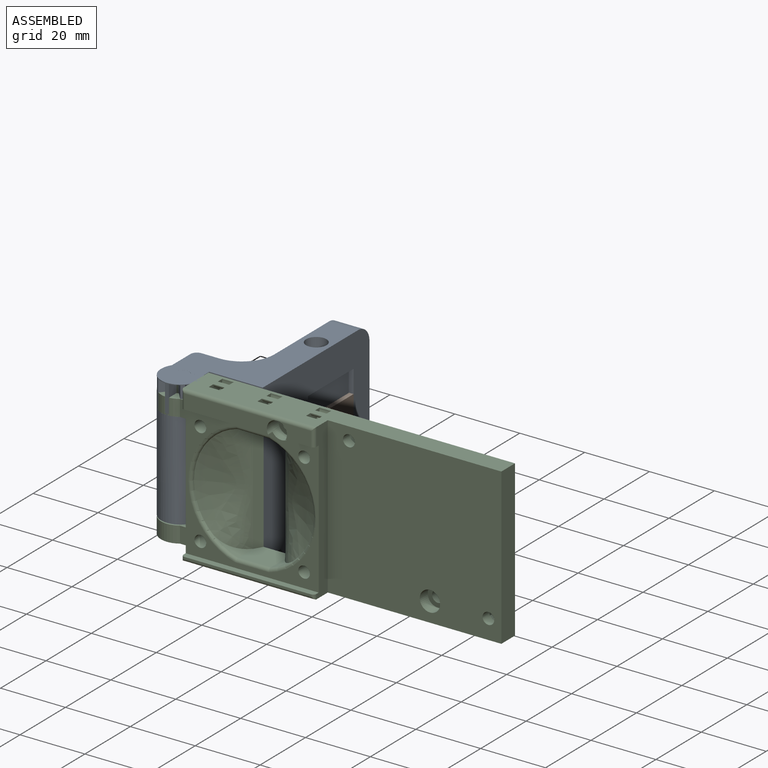
[diagram: assembled view]
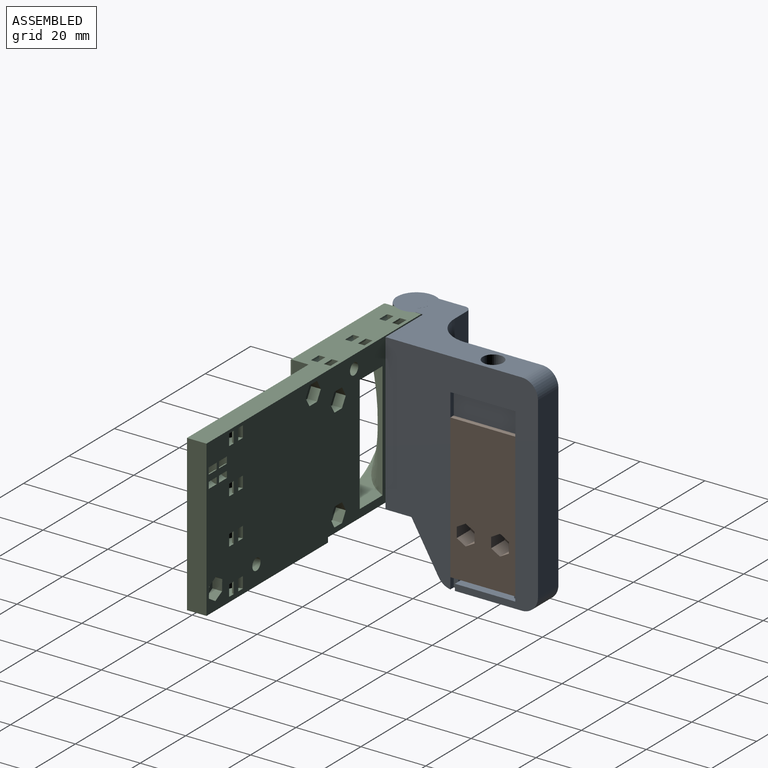
[diagram: assembled view, second angle]
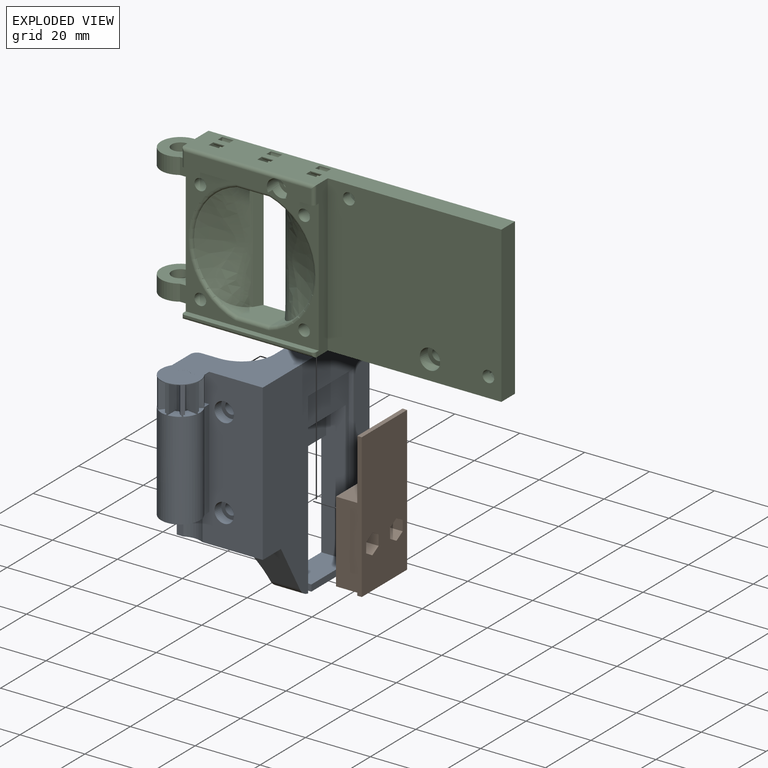
[diagram: exploded view]
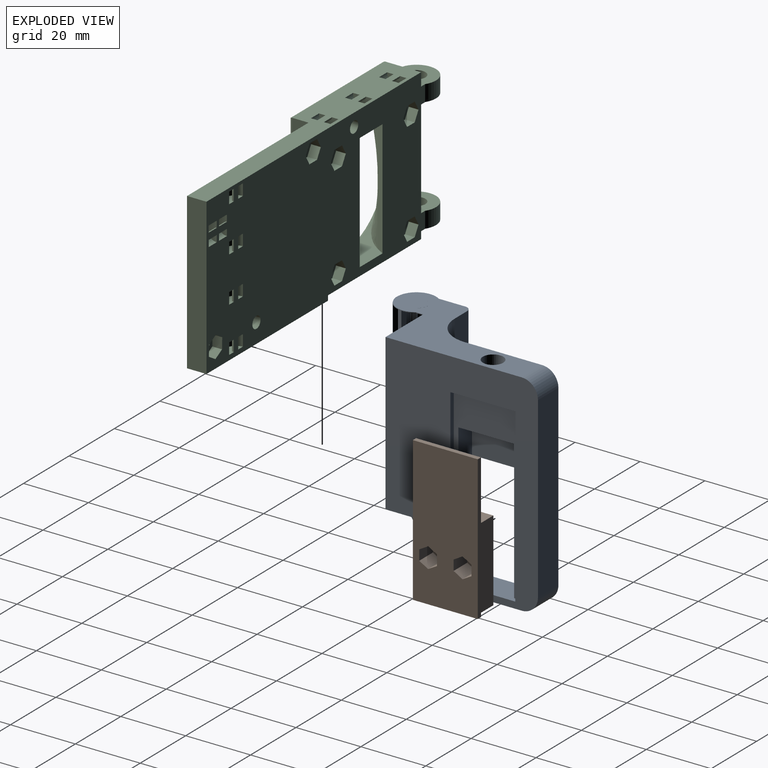
[diagram: exploded view, second angle]
ASSEMBLY  parts=3 mates=3
PART A: 139 faces, bbox 68.4x37.4x74.9 mm
  f0: plane 8.3x2.51mm, normal (-0.87,0.5,0), area 20.7mm2, adj f3,f23,f92,f116,f122,f123
  f1: plane 8.3x2.52mm, normal (-0.87,-0.5,0), area 20.8mm2, adj f20,f23,f114,f116,f122,f123
  f2: cylinder r=2.75mm len=38.8mm, axis (0,0,1), area 592.8mm2, adj f4,f6,f7,f9,f10,f12,f13,f15
  f3: plane 8.51x1.04mm, normal (-0.51,-0.86,0), area 10.1mm2, adj f0,f4,f37,f38,f48,f91,f92,f123
  f4: plane 8.5x2.88mm, normal (0.87,-0.5,0), area 27.6mm2, adj f2,f3,f48,f91,f125,f131
  f5: plane 8.5x1.18mm, normal (0.17,-0.99,0), area 10.2mm2, adj f6,f7,f38,f48,f95,f96,f137
  f6: plane 8.5x3.27mm, normal (0.98,0.17,0), area 27.6mm2, adj f2,f5,f48,f95,f125,f130
  f7: plane 8.5x3.26mm, normal (-0.98,-0.17,0), area 27.5mm2, adj f2,f5,f48,f96,f125,f131
  f8: plane 8.5x0.91mm, normal (0.76,-0.65,0), area 10.2mm2, adj f9,f10,f38,f48,f99,f100,f136
  f9: plane 8.5x2.54mm, normal (0.64,0.77,0), area 27.6mm2, adj f2,f8,f48,f99,f125,f129
  f10: plane 8.5x2.54mm, normal (-0.64,-0.77,0), area 27.5mm2, adj f2,f8,f48,f100,f125,f130
  f11: plane 8.5x1.2mm, normal (1,-0.01,0), area 10.2mm2, adj f12,f13,f38,f48,f103,f104,f135
  f12: plane 8.5x3.32mm, normal (0,1,0), area 27.6mm2, adj f2,f11,f48,f103,f125,f128
  f13: plane 8.5x3.31mm, normal (0,-1,0), area 27.5mm2, adj f2,f11,f48,f104,f125,f129
  f14: plane 8.5x0.93mm, normal (0.77,0.64,0), area 10.2mm2, adj f15,f16,f38,f48,f107,f108,f134
  f15: plane 8.5x2.54mm, normal (-0.64,0.77,0), area 27.6mm2, adj f2,f14,f48,f107,f125,f127
  f16: plane 8.5x2.54mm, normal (0.64,-0.77,0), area 27.5mm2, adj f2,f14,f48,f108,f125,f128
  f17: plane 8.5x1.18mm, normal (0.18,0.98,0), area 10.2mm2, adj f18,f19,f38,f48,f111,f112,f133
  f18: plane 8.5x3.27mm, normal (-0.98,0.17,0), area 27.6mm2, adj f2,f17,f48,f111,f125,f126
  f19: plane 8.5x3.26mm, normal (0.98,-0.17,0), area 27.5mm2, adj f2,f17,f48,f112,f125,f127
  f20: plane 8.5x1.04mm, normal (-0.49,0.87,0), area 10.1mm2, adj f1,f21,f38,f48,f114,f115,f123,f124
  f21: plane 8.5x2.87mm, normal (0.87,0.5,0), area 27.5mm2, adj f2,f20,f48,f115,f125,f126
  f22: extruded ~8.29x4.05mm, area 37.7mm2, adj f2,f125
  f23: cylinder r=3.55mm len=8.29mm, axis (0,0,-1), area 51.6mm2, adj f0,f1,f122,f123
  f24: plane 2.47x1.43mm, normal (-0.87,-0.5,0), area 1.4mm2, adj f26,f38,f114,f116
  f25: plane 3.67x3.52mm, normal (0,0,1), area 8.6mm2, adj f2,f38,f109,f113
  f26: plane 10.19x4.51mm, normal (0,0,1), area 32.1mm2, adj f24,f36,f37,f38,f45,f56,f57,f90
  f27: plane 3.95x3.79mm, normal (0,0,1), area 8.6mm2, adj f2,f38,f105,f110
  f28: plane 3.77x3.5mm, normal (0,0,1), area 8.6mm2, adj f2,f38,f101,f106
  f29: plane 3.77x3.5mm, normal (0,0,1), area 8.6mm2, adj f2,f38,f97,f102
  f30: plane 3.95x3.79mm, normal (0,0,1), area 8.6mm2, adj f2,f38,f93,f98
  f31: plane 3.67x3.52mm, normal (0,0,1), area 8.6mm2, adj f2,f38,f89,f94
  f32: cylinder r=10mm len=64.21mm, axis (0,0,-1), area 714.2mm2, adj f43,f47,f48,f59,f61,f65,f66,f76
  f33: cylinder r=1.8mm len=3.02mm, axis (1,0,0), area 4.8mm2, adj f86,f88
  f34: cylinder r=1.8mm len=3.02mm, axis (1,0,0), area 4.8mm2, adj f78,f80
  f35: plane 65x47mm, normal (0,1,0), area 1760.7mm2, adj f40,f42,f44,f45,f46,f48,f58,f59
  f36: plane 30x2.18mm, normal (0,1,0), area 65.5mm2, adj f26,f38,f45,f72
  f37: plane 48x8.18mm, normal (0,-1,0), area 353.9mm2, adj f3,f26,f38,f48,f57,f58,f60,f70
  f38: cylinder r=6mm len=30.5mm, axis (0,0,1), area 777.7mm2, adj f3,f5,f8,f11,f14,f17,f20,f24
  f39: plane 17.2x6mm, normal (0,0,-1), area 95.2mm2, adj f41,f49,f51,f54,f55
  f40: plane 54.95x1.5mm, normal (-1,0,0), area 82.4mm2, adj f35,f55,f61,f64
  f41: plane 17.2x10mm, normal (0,1,0), area 172mm2, adj f39,f49,f50,f51
  f42: plane 53x1.5mm, normal (1,0,0), area 79.5mm2, adj f35,f55,f64,f69
  f43: plane 74.94x38.94mm, normal (0,-1,0), area 1299.1mm2, adj f32,f44,f46,f48,f49,f50,f51,f61
  f44: plane 21.3x9mm, normal (0,0,-1), area 190.6mm2, adj f35,f43,f55,f61,f62,f68
  f45: plane 48x18.53mm, normal (1,0,0), area 771.6mm2, adj f26,f35,f36,f48,f56,f58,f71,f72
  f46: plane 55x9mm, normal (-1,0,0), area 495mm2, adj f35,f43,f62,f63
  f47: plane 48x15.4mm, normal (-1,0,0), area 356.5mm2, adj f32,f48,f58,f60,f73,f76,f77,f79
  f48: plane 53.5x27.51mm, normal (0,0,1), area 619.2mm2, adj f3,f4,f5,f6,f7,f8,f9,f10
  f49: plane 43x7.5mm, normal (-1,0,0), area 307.5mm2, adj f39,f41,f43,f50,f55,f69
  f50: plane 17.2x1.5mm, normal (0,0,-1), area 25.8mm2, adj f41,f43,f49,f51
  f51: plane 43x7.5mm, normal (1,0,0), area 307.5mm2, adj f39,f41,f43,f50,f55,f69
  f52: cylinder r=3.15mm len=6.3mm, axis (0,0,1), area 69.3mm2, adj f48,f53
  f53: plane 6.3x6.3mm, normal (0,0,1), area 23.1mm2, adj f52,f54
  f54: cylinder r=1.6mm len=16.5mm, axis (0,0,1), area 165.9mm2, adj f39,f53
  f55: plane 55x20mm, normal (0,1,0), area 323.2mm2, adj f39,f40,f42,f44,f49,f51,f61,f64
  f56: cylinder r=6.25mm len=8.8mm, axis (0,0,1), area 54.4mm2, adj f26,f45,f57,f123
  f57: plane 8.8x2.03mm, normal (1,0,0), area 17.9mm2, adj f26,f37,f56,f123
  f58: plane 26.5x8mm, normal (0,0,-1), area 192.4mm2, adj f35,f37,f45,f47,f59,f60,f67,f70
  f59: plane 19x14.5mm, normal (0.87,0,-0.5), area 193.5mm2, adj f32,f35,f58,f61
  f60: cylinder r=2mm len=48mm, axis (0,0,1), area 150.8mm2, adj f37,f47,f48,f58
  f61: cylinder r=5mm len=9.13mm, axis (0,1,0), area 46.2mm2, adj f32,f35,f40,f43,f44,f55,f59
  f62: cylinder r=5mm len=9mm, axis (0,1,0), area 70.7mm2, adj f35,f43,f44,f46
  f63: cylinder r=5mm len=9mm, axis (0,-1,0), area 70.7mm2, adj f35,f43,f46,f48
  f64: plane 20x1.5mm, normal (0,0,-1), area 30mm2, adj f35,f40,f42,f55
  f65: revolved ~5.98x4.09mm, area 34.2mm2, adj f32,f43
  f66: revolved ~5.98x4.09mm, area 34.2mm2, adj f32,f43
  f67: revolved ~6.9x4mm, area 71.5mm2, adj f58
  f68: plane 2x1.5mm, normal (1,0,0), area 3mm2, adj f35,f44,f55,f69
  f69: plane 18.6x9mm, normal (0,0,1), area 156.9mm2, adj f35,f42,f43,f49,f51,f55,f68
  f70: plane 9x2.03mm, normal (1,0,0), area 18.3mm2, adj f37,f58,f71,f72
  f71: cylinder r=6.25mm len=9mm, axis (0,0,-1), area 55.7mm2, adj f45,f58,f70,f72
  f72: plane 12.25x12mm, normal (0,0,-1), area 95.3mm2, adj f2,f36,f37,f38,f45,f70,f71
  f73: cylinder r=1.8mm len=5mm, axis (1,0,0), area 56.5mm2, adj f47,f74
  f74: plane 6x6mm, normal (1,0,0), area 18.1mm2, adj f73,f75
  f75: cylinder r=3mm len=6mm, axis (1,0,0), area 56.5mm2, adj f45,f74
  f76: plane 9.9x3mm, normal (0,0,-1), area 14.9mm2, adj f32,f47,f78,f79
  f77: plane 9.9x3mm, normal (0,0,1), area 14.9mm2, adj f32,f47,f78,f79
  f78: plane 5.91x2.97mm, normal (1,0,0), area 10.3mm2, adj f34,f76,f77,f79,f80
  f79: plane 5.7x3mm, normal (0,-1,0), area 17.1mm2, adj f47,f76,f77,f78
  f80: bspline ~5.87x3.81mm, area 7.1mm2, adj f32,f34,f78
  f81: cylinder r=1.8mm len=5mm, axis (1,0,0), area 56.5mm2, adj f47,f82
  f82: plane 6x6mm, normal (1,0,0), area 18.1mm2, adj f81,f83
  f83: cylinder r=3mm len=6mm, axis (1,0,0), area 56.5mm2, adj f45,f82
  f84: plane 9.9x3mm, normal (0,0,-1), area 14.9mm2, adj f32,f47,f86,f87
  f85: plane 9.9x3mm, normal (0,0,1), area 14.9mm2, adj f32,f47,f86,f87
  f86: plane 5.91x2.97mm, normal (1,0,0), area 10.3mm2, adj f33,f84,f85,f87,f88
  f87: plane 5.7x3mm, normal (0,-1,0), area 17.1mm2, adj f47,f84,f85,f86
  f88: bspline ~5.87x3.81mm, area 7.1mm2, adj f32,f33,f86
  f89: plane 2.82x1.63mm, normal (0.87,-0.5,0), area 1.6mm2, adj f2,f31,f38,f91
  f90: plane 2.47x1.43mm, normal (-0.87,0.5,0), area 1.4mm2, adj f26,f38,f92,f116
  f91: plane 3.02x2.01mm, normal (0,0,-1), area 1.3mm2, adj f2,f3,f4,f89
  f92: plane 2.72x1.77mm, normal (0,0,-1), area 1.1mm2, adj f0,f3,f90,f116
  f93: plane 3.2x0.57mm, normal (0.98,0.17,0), area 1.6mm2, adj f2,f30,f38,f95
  f94: plane 3.2x0.57mm, normal (-0.98,-0.17,0), area 1.6mm2, adj f2,f31,f38,f96
  f95: plane 3.37x0.96mm, normal (0,0,-1), area 1.3mm2, adj f2,f5,f6,f38,f93
  f96: plane 3.27x1.08mm, normal (0,0,-1), area 1.3mm2, adj f2,f5,f7,f38,f94
  f97: plane 2.49x2.09mm, normal (0.64,0.77,0), area 1.6mm2, adj f2,f29,f38,f99
  f98: plane 2.49x2.09mm, normal (-0.64,-0.77,0), area 1.6mm2, adj f2,f30,f38,f100
  f99: plane 2.76x2.59mm, normal (0,0,-1), area 1.3mm2, adj f2,f8,f9,f38,f97
  f100: plane 2.87x2.4mm, normal (0,0,-1), area 1.3mm2, adj f2,f8,f10,f38,f98
  f101: plane 3.25x0.5mm, normal (0,1,0), area 1.6mm2, adj f2,f28,f38,f103
  f102: plane 3.25x0.5mm, normal (0,-1,0), area 1.6mm2, adj f2,f29,f38,f104
  f103: plane 3.32x0.6mm, normal (0,0,-1), area 1.3mm2, adj f2,f11,f12,f38,f101
  f104: plane 3.32x0.51mm, normal (0,0,-1), area 1.3mm2, adj f2,f11,f13,f38,f102
  f105: plane 2.49x2.09mm, normal (-0.64,0.77,0), area 1.6mm2, adj f2,f27,f38,f107
  f106: plane 2.49x2.09mm, normal (0.64,-0.77,0), area 1.6mm2, adj f2,f28,f38,f108
  f107: plane 2.93x2.4mm, normal (0,0,-1), area 1.3mm2, adj f2,f14,f15,f38,f105
  f108: plane 2.75x2.52mm, normal (0,0,-1), area 1.3mm2, adj f2,f14,f16,f38,f106
  f109: plane 3.2x0.57mm, normal (-0.98,0.17,0), area 1.6mm2, adj f2,f25,f38,f111
  f110: plane 3.2x0.57mm, normal (0.98,-0.17,0), area 1.6mm2, adj f2,f27,f38,f112
  f111: plane 3.28x1.17mm, normal (0,0,-1), area 1.3mm2, adj f2,f17,f18,f38,f109
  f112: plane 3.35x0.96mm, normal (0,0,-1), area 1.3mm2, adj f2,f17,f19,f38,f110
  f113: plane 2.82x1.63mm, normal (0.87,0.5,0), area 1.6mm2, adj f2,f25,f38,f115
  f114: plane 2.82x1.78mm, normal (0,0,-1), area 1.2mm2, adj f1,f20,f24,f38,f116
  f115: plane 3.02x2.1mm, normal (0,0,-1), area 1.3mm2, adj f2,f20,f21,f38,f113
  f116: cylinder r=3.15mm len=5.25mm, axis (0,0,-1), area 3.2mm2, adj f0,f1,f24,f26,f90,f92,f114,f122
  f117: plane 0.71x0.41mm, normal (0.87,-0.5,0), area 0mm2, adj f48,f119,f120,f121
  f118: plane 0.71x0.41mm, normal (0.87,0.5,0), area 0mm2, adj f48,f119,f120,f121
  f119: extruded ~4.05x0.89mm, area 0mm2, adj f48,f117,f118,f121
  f120: cylinder r=3.55mm len=5.46mm, axis (0,0,-1), area 0.1mm2, adj f48,f117,f118,f121
  f121: plane 5.46x1.69mm, normal (0,0,1), area 4.3mm2, adj f117,f118,f119,f120
  f122: plane 5.46x1.48mm, normal (0,0,-1), area 2.3mm2, adj f0,f1,f23,f116
  f123: plane 10x3.98mm, normal (0,0,-1), area 27.5mm2, adj f0,f1,f3,f20,f23,f37,f45,f56
  f124: plane 2.15x0.2mm, normal (0,1,0), area 0.4mm2, adj f20,f45,f48,f123
  f125: plane 12x8.72mm, normal (0,0,-1), area 59.8mm2, adj f2,f4,f6,f7,f9,f10,f12,f13
  f126: cylinder r=6mm len=2.91mm, axis (0,0,1), area 0.6mm2, adj f18,f21,f48,f125
  f127: cylinder r=6mm len=2.56mm, axis (0,0,1), area 0.6mm2, adj f15,f19,f48,f125
  f128: cylinder r=6mm len=2.78mm, axis (0,0,1), area 0.6mm2, adj f12,f16,f48,f125
  f129: cylinder r=6mm len=2.78mm, axis (0,0,1), area 0.6mm2, adj f9,f13,f48,f125
  f130: cylinder r=6mm len=2.56mm, axis (0,0,1), area 0.6mm2, adj f6,f10,f48,f125
  f131: cylinder r=6mm len=2.91mm, axis (0,0,1), area 0.6mm2, adj f4,f7,f48,f125
  f132: cylinder r=6mm len=0.2mm, axis (0,0,1), area 0mm2, adj f20,f48
  f133: cylinder r=6mm len=0.2mm, axis (0,0,1), area 0mm2, adj f17,f48
  f134: cylinder r=6mm len=0.2mm, axis (0,0,1), area 0mm2, adj f14,f48
  f135: cylinder r=6mm len=0.2mm, axis (0,0,1), area 0mm2, adj f11,f48
  f136: cylinder r=6mm len=0.2mm, axis (0,0,1), area 0mm2, adj f8,f48
  f137: cylinder r=6mm len=0.2mm, axis (0,0,1), area 0mm2, adj f5,f48
  f138: cylinder r=6mm len=0.2mm, axis (0,0,1), area 0mm2, adj f3,f48
PART B: 37 faces, bbox 20x9x44.5 mm
  f0: cylinder r=1.6mm len=6.5mm, axis (0,0,1), area 65.3mm2, adj f18,f22
  f1: plane 44.5x20mm, normal (0,1,0), area 837.6mm2, adj f2,f6,f8,f9,f10,f11,f12,f13
  f2: plane 44.5x1.4mm, normal (-1,0,0), area 62.3mm2, adj f1,f3,f6,f16
  f3: plane 44.5x20mm, normal (0,-1,0), area 465mm2, adj f2,f4,f6,f7,f16,f25,f26
  f4: plane 25x7.6mm, normal (-1,0,0), area 190mm2, adj f3,f5,f6,f7
  f5: plane 25x17mm, normal (0,-1,0), area 380.6mm2, adj f4,f6,f7,f15,f21,f22,f23,f26
  f6: plane 20x9mm, normal (0,0,-1), area 157.2mm2, adj f1,f2,f3,f4,f5,f25,f26
  f7: plane 17x7.6mm, normal (0,0,1), area 105.4mm2, adj f3,f4,f5,f19,f26
  f8: plane 6x3.18mm, normal (-1,0,0), area 19.1mm2, adj f1,f9,f13,f14
  f9: plane 6x2.75mm, normal (-0.5,0,0.87), area 19.1mm2, adj f1,f8,f10,f14
  f10: plane 6x2.75mm, normal (0.5,0,0.87), area 19.1mm2, adj f1,f9,f11,f14
  f11: plane 6x3.18mm, normal (1,0,0), area 19.1mm2, adj f1,f10,f12,f14
  f12: plane 6x2.75mm, normal (0.5,0,-0.87), area 19.1mm2, adj f1,f11,f13,f14
  f13: plane 6x2.75mm, normal (-0.5,0,-0.87), area 19.1mm2, adj f1,f8,f12,f14
  f14: plane 6.35x5.5mm, normal (0,1,0), area 16.6mm2, adj f8,f9,f10,f11,f12,f13,f15
  f15: cylinder r=1.75mm len=3.5mm, axis (0,1,0), area 33mm2, adj f5,f14
  f16: plane 20x1.4mm, normal (0,0,1), area 28mm2, adj f1,f2,f3,f25
  f17: cylinder r=1.6mm len=3.2mm, axis (0,0,1), area 30.2mm2, adj f20,f21
  f18: plane 3.2x3.2mm, normal (0,0,1), area 8mm2, adj f0
  f19: cylinder r=2.75mm len=5.5mm, axis (0,0,1), area 17.3mm2, adj f7,f20
  f20: plane 5.5x5.5mm, normal (0,0,1), area 15.7mm2, adj f17,f19
  f21: plane 7.7x5.6mm, normal (0,0,-1), area 30.6mm2, adj f5,f17,f23,f24,f35,f36
  f22: plane 7.7x5.6mm, normal (0,0,1), area 30.6mm2, adj f0,f5,f23,f24,f35,f36
  f23: plane 6.08x4.5mm, normal (1,0,0), area 27.4mm2, adj f5,f21,f22,f24
  f24: plane 4.5x2.8mm, normal (0.5,-0.87,0), area 14.5mm2, adj f21,f22,f23,f36
  f25: plane 44.5x1.4mm, normal (1,0,0), area 62.3mm2, adj f1,f3,f6,f16
  f26: plane 25x7.6mm, normal (1,0,0), area 190mm2, adj f3,f5,f6,f7
  f27: plane 6x3.18mm, normal (1,0,0), area 19.1mm2, adj f1,f28,f32,f33
  f28: plane 6x2.75mm, normal (0.5,0,0.87), area 19.1mm2, adj f1,f27,f29,f33
  f29: plane 6x2.75mm, normal (-0.5,0,0.87), area 19.1mm2, adj f1,f28,f30,f33
  f30: plane 6x3.18mm, normal (-1,0,0), area 19.1mm2, adj f1,f29,f31,f33
  f31: plane 6x2.75mm, normal (-0.5,0,-0.87), area 19.1mm2, adj f1,f30,f32,f33
  f32: plane 6x2.75mm, normal (0.5,0,-0.87), area 19.1mm2, adj f1,f27,f31,f33
  f33: plane 6.35x5.5mm, normal (0,1,0), area 16.6mm2, adj f27,f28,f29,f30,f31,f32,f34
  f34: cylinder r=1.75mm len=3.5mm, axis (0,1,0), area 33mm2, adj f5,f33
  f35: plane 6.08x4.5mm, normal (-1,0,0), area 27.4mm2, adj f5,f21,f22,f36
  f36: plane 4.5x2.8mm, normal (-0.5,-0.87,0), area 14.5mm2, adj f21,f22,f24,f35
PART C: 155 faces, bbox 106.1x13.5x48.5 mm
  f0: plane 94.5x11mm, normal (0,0,1), area 730mm2, adj f1,f9,f18,f19,f20,f42,f143,f144
  f1: plane 96.28x48mm, normal (0,1,0), area 3853.2mm2, adj f0,f2,f3,f7,f8,f9,f10,f12
  f2: plane 94.5x11mm, normal (0,0,-1), area 628mm2, adj f1,f4,f5,f6,f7,f18,f19,f20
  f3: plane 41x3mm, normal (0,0,-1), area 106.2mm2, adj f1,f4,f5,f6,f7,f86,f87,f107
  f4: plane 2.5x1.5mm, normal (0,1,0), area 3.8mm2, adj f2,f3,f86,f116
  f5: plane 11.5x1.5mm, normal (0,1,0), area 17.3mm2, adj f2,f3,f112,f118
  f6: plane 11.5x1.5mm, normal (0,1,0), area 17.3mm2, adj f2,f3,f108,f114
  f7: plane 11x3.7mm, normal (-1,0,0), area 34mm2, adj f1,f2,f3,f22,f27,f40,f87,f105
  f8: plane 30.3x10mm, normal (-1,0,0), area 303mm2, adj f1,f27,f101,f106
  f9: plane 11x5.5mm, normal (-1,0,0), area 45.5mm2, adj f0,f1,f13,f27,f41,f102
  f10: cylinder r=1.8mm len=3.6mm, axis (0,1,0), area 28.3mm2, adj f1,f98
  f11: plane 9.72x4.5mm, normal (0,-1,0), area 35.3mm2, adj f14,f42,f43,f94
  f12: cylinder r=1.8mm len=6.8mm, axis (0,1,0), area 76.9mm2, adj f1,f96
  f13: plane 26.79x2mm, normal (0,0,-1), area 53.4mm2, adj f9,f21,f27,f41,f94
  f14: plane 8.79x2mm, normal (0,0,-1), area 17.4mm2, adj f11,f20,f27,f43,f94
  f15: cylinder r=18.68mm len=8.76mm, axis (0,1,0), area 33.8mm2, adj f17,f33,f34
  f16: cylinder r=18.68mm len=8.76mm, axis (0,1,0), area 33.8mm2, adj f24,f32,f37
  f17: plane 11.5x9mm, normal (0,0,1), area 90mm2, adj f1,f15,f26,f28,f29,f36
  f18: plane 48x6mm, normal (1,0,0), area 288mm2, adj f0,f1,f2,f19
  f19: plane 53.5x48mm, normal (0,-1,0), area 2516.5mm2, adj f0,f2,f18,f20,f92,f93,f97
  f20: plane 48x5mm, normal (1,0,0), area 199mm2, adj f0,f2,f14,f19,f22,f27,f38,f43
  f21: plane 27.72x4.5mm, normal (0,-1,0), area 116.3mm2, adj f13,f41,f42,f94
  f22: plane 41x2mm, normal (0,0,1), area 81.6mm2, adj f7,f20,f23,f27,f38,f40
  f23: plane 39x0.5mm, normal (0,-1,0), area 19.5mm2, adj f22,f38,f39,f40
  f24: plane 11.5x9mm, normal (0,0,-1), area 90mm2, adj f1,f16,f25,f28,f29,f35
  f25: cylinder r=18.68mm len=8.76mm, axis (0,1,0), area 33.8mm2, adj f24,f33,f34
  f26: cylinder r=18.68mm len=8.76mm, axis (0,1,0), area 33.8mm2, adj f17,f32,f37
  f27: plane 42.78x42.5mm, normal (0,-1,0), area 444.4mm2, adj f7,f8,f9,f13,f14,f20,f22,f34
  f28: plane 36.49x2.99mm, normal (0.86,-0.51,0), area 105mm2, adj f1,f17,f24,f32
  f29: plane 36.49x2.99mm, normal (-0.86,0.51,0), area 105mm2, adj f1,f17,f24,f33
  f30: cone r=4.68mm half-angle=66.8deg, axis (0,-1,0), area 0mm2, adj f33,f34
  f31: cone r=4.68mm half-angle=66.8deg, axis (0,-1,0), area 0mm2, adj f32,f37
  f32: bspline ~43.7x10.17mm, area 247.5mm2, adj f16,f26,f28,f31
  f33: bspline ~43.7x10.17mm, area 247.5mm2, adj f15,f25,f29,f30
  f34: torus R=19.68mm, axis (0,-1,0), area 78mm2, adj f15,f25,f27,f30,f35,f36
  f35: cylinder r=1mm len=10.27mm, axis (-1,0,0), area 15.9mm2, adj f24,f27,f34,f37
  f36: cylinder r=1mm len=10.27mm, axis (1,0,0), area 15.9mm2, adj f17,f27,f34,f37
  f37: torus R=19.68mm, axis (0,-1,0), area 78mm2, adj f16,f26,f27,f31,f35,f36
  f38: cylinder r=1mm len=1.5mm, axis (0,0,-1), area 1.6mm2, adj f20,f22,f23,f39
  f39: cylinder r=1mm len=41mm, axis (-1,0,0), area 62.8mm2, adj f2,f23,f38,f40
  f40: cylinder r=1mm len=1.5mm, axis (0,0,1), area 1.6mm2, adj f7,f22,f23,f39
  f41: cylinder r=1mm len=5.5mm, axis (0,0,1), area 7.9mm2, adj f9,f13,f21,f42
  f42: cylinder r=1mm len=41mm, axis (1,0,0), area 62.8mm2, adj f0,f11,f21,f41,f43,f95
  f43: cylinder r=1mm len=5.5mm, axis (0,0,-1), area 7.9mm2, adj f11,f14,f20,f42
  f44: plane 3x2.86mm, normal (0.52,0,-0.85), area 10mm2, adj f1,f45,f49,f50
  f45: plane 3.35x3mm, normal (1,0,0.02), area 10mm2, adj f1,f44,f46,f50
  f46: plane 3x2.94mm, normal (0.48,0,0.88), area 10mm2, adj f1,f45,f47,f50
  f47: plane 3x2.86mm, normal (-0.52,0,0.85), area 10mm2, adj f1,f46,f48,f50
  f48: plane 3.35x3mm, normal (-1,0,-0.02), area 10mm2, adj f1,f47,f49,f50
  f49: plane 3x2.94mm, normal (-0.48,0,-0.88), area 10mm2, adj f1,f44,f48,f50
  f50: plane 6.7x5.87mm, normal (0,1,0), area 19mm2, adj f44,f45,f46,f47,f48,f49,f92
  f51: plane 3.35x3mm, normal (0,0,-1), area 10mm2, adj f1,f52,f56,f57
  f52: plane 3x2.9mm, normal (0.87,0,-0.5), area 10mm2, adj f1,f51,f53,f57
  f53: plane 3x2.9mm, normal (0.87,0,0.5), area 10mm2, adj f1,f52,f54,f57
  f54: plane 3.35x3mm, normal (0,0,1), area 10mm2, adj f1,f53,f55,f57
  f55: plane 3x2.9mm, normal (-0.87,0,0.5), area 10mm2, adj f1,f54,f56,f57
  f56: plane 3x2.9mm, normal (-0.87,0,-0.5), area 10mm2, adj f1,f51,f55,f57
  f57: plane 6.7x5.8mm, normal (0,1,0), area 19mm2, adj f51,f52,f53,f54,f55,f56,f88
  f58: plane 3x2.9mm, normal (0.87,0,-0.5), area 10mm2, adj f1,f59,f63,f64
  f59: plane 3x2.9mm, normal (0.87,0,0.5), area 10mm2, adj f1,f58,f60,f64
  f60: plane 3.35x3mm, normal (0,0,1), area 10mm2, adj f1,f59,f61,f64
  f61: plane 3x2.9mm, normal (-0.87,0,0.5), area 10mm2, adj f1,f60,f62,f64
  f62: plane 3x2.9mm, normal (-0.87,0,-0.5), area 10mm2, adj f1,f61,f63,f64
  f63: plane 3.35x3mm, normal (0,0,-1), area 10mm2, adj f1,f58,f62,f64
  f64: plane 6.7x5.8mm, normal (0,1,0), area 19mm2, adj f58,f59,f60,f61,f62,f63,f90
  f65: plane 3x2.9mm, normal (0.87,0,-0.5), area 10mm2, adj f1,f66,f70,f71
  f66: plane 3x2.9mm, normal (0.87,0,0.5), area 10mm2, adj f1,f65,f67,f71
  f67: plane 3.35x3mm, normal (0,0,1), area 10mm2, adj f1,f66,f68,f71
  f68: plane 3x2.9mm, normal (-0.87,0,0.5), area 10mm2, adj f1,f67,f69,f71
  f69: plane 3x2.9mm, normal (-0.87,0,-0.5), area 10mm2, adj f1,f68,f70,f71
  f70: plane 3.35x3mm, normal (0,0,-1), area 10mm2, adj f1,f65,f69,f71
  f71: plane 6.7x5.8mm, normal (0,1,0), area 19mm2, adj f65,f66,f67,f68,f69,f70,f91
  f72: plane 3x2.9mm, normal (0.87,0,-0.5), area 10mm2, adj f1,f73,f77,f78
  f73: plane 3x2.9mm, normal (0.87,0,0.5), area 10mm2, adj f1,f72,f74,f78
  f74: plane 3.35x3mm, normal (0,0,1), area 10mm2, adj f1,f73,f75,f78
  f75: plane 3x2.9mm, normal (-0.87,0,0.5), area 10mm2, adj f1,f74,f76,f78
  f76: plane 3x2.9mm, normal (-0.87,0,-0.5), area 10mm2, adj f1,f75,f77,f78
  f77: plane 3.35x3mm, normal (0,0,-1), area 10mm2, adj f1,f72,f76,f78
  f78: plane 6.7x5.8mm, normal (0,1,0), area 19mm2, adj f72,f73,f74,f75,f76,f77,f89
  f79: plane 3.35x3mm, normal (0,0,-1), area 10mm2, adj f1,f80,f84,f85
  f80: plane 3x2.9mm, normal (0.87,0,-0.5), area 10mm2, adj f1,f79,f81,f85
  f81: plane 3x2.9mm, normal (0.87,0,0.5), area 10mm2, adj f1,f80,f82,f85
  f82: plane 3.35x3mm, normal (0,0,1), area 10mm2, adj f1,f81,f83,f85
  f83: plane 3x2.9mm, normal (-0.87,0,0.5), area 10mm2, adj f1,f82,f84,f85
  f84: plane 3x2.9mm, normal (-0.87,0,-0.5), area 10mm2, adj f1,f79,f83,f85
  f85: plane 6.7x5.8mm, normal (0,1,0), area 19mm2, adj f79,f80,f81,f82,f83,f84,f93
  f86: plane 3x1.5mm, normal (-1,0,0), area 4.5mm2, adj f1,f2,f3,f4
  f87: plane 5x1.5mm, normal (0,1,0), area 7.5mm2, adj f2,f3,f7,f110
  f88: cylinder r=1.8mm len=7mm, axis (0,1,0), area 79.2mm2, adj f27,f57
  f89: cylinder r=1.8mm len=7mm, axis (0,1,0), area 79.2mm2, adj f27,f78
  f90: cylinder r=1.8mm len=7mm, axis (0,1,0), area 79.2mm2, adj f27,f64
  f91: cylinder r=1.8mm len=7mm, axis (0,1,0), area 79.2mm2, adj f27,f71
  f92: cylinder r=1.8mm len=3.6mm, axis (0,1,0), area 33.9mm2, adj f19,f50
  f93: cylinder r=1.8mm len=3.6mm, axis (0,1,0), area 33.9mm2, adj f19,f85
  f94: cylinder r=3.1mm len=6.2mm, axis (0,-1,0), area 79.9mm2, adj f11,f13,f14,f21,f27,f95,f96
  f95: plane 5.2x1.56mm, normal (0,0,-1), area 8.1mm2, adj f42,f94,f96
  f96: plane 6.2x6.1mm, normal (0,-1,0), area 19.9mm2, adj f12,f94,f95
  f97: cylinder r=3.15mm len=6.3mm, axis (0,-1,0), area 69.3mm2, adj f19,f98
  f98: plane 6.3x6.3mm, normal (0,-1,0), area 21mm2, adj f10,f97
  f99: cylinder r=6mm len=12mm, axis (0,0,1), area 129.4mm2, adj f1,f27,f101,f102
  f100: cylinder r=2.75mm len=5.5mm, axis (0,0,1), area 86.4mm2, adj f101,f102
  f101: plane 12x11.1mm, normal (0,0,-1), area 88.3mm2, adj f1,f8,f27,f99,f100
  f102: plane 12x11.1mm, normal (0,0,1), area 88.3mm2, adj f1,f9,f27,f99,f100
  f103: cylinder r=6mm len=12mm, axis (0,0,1), area 129.4mm2, adj f1,f27,f105,f106
  f104: cylinder r=2.75mm len=5.5mm, axis (0,0,1), area 86.4mm2, adj f105,f106
  f105: plane 12x11.1mm, normal (0,0,-1), area 88.3mm2, adj f1,f7,f27,f103,f104
  f106: plane 12x11.1mm, normal (0,0,1), area 88.3mm2, adj f1,f8,f27,f103,f104
  f107: cylinder r=3mm len=5.6mm, axis (1,0,0), area 27.5mm2, adj f2,f3,f108,f110
  f108: plane 5.6x3mm, normal (-1,0,0), area 9.8mm2, adj f2,f3,f6,f107,f109
  f109: cylinder r=1mm len=3.5mm, axis (1,0,0), area 11mm2, adj f2,f108,f110
  f110: plane 5.6x3mm, normal (1,0,0), area 9.8mm2, adj f2,f3,f87,f107,f109
  f111: cylinder r=3mm len=5.6mm, axis (1,0,0), area 27.5mm2, adj f2,f3,f112,f114
  f112: plane 5.6x3mm, normal (-1,0,0), area 9.8mm2, adj f2,f3,f5,f111,f113
  f113: cylinder r=1mm len=3.5mm, axis (1,0,0), area 11mm2, adj f2,f112,f114
  f114: plane 5.6x3mm, normal (1,0,0), area 9.8mm2, adj f2,f3,f6,f111,f113
  f115: cylinder r=3mm len=5.6mm, axis (1,0,0), area 27.5mm2, adj f2,f3,f116,f118
  f116: plane 5.6x3mm, normal (-1,0,0), area 9.8mm2, adj f2,f3,f4,f115,f117
  f117: cylinder r=1mm len=3.5mm, axis (1,0,0), area 11mm2, adj f2,f116,f118
  f118: plane 5.6x3mm, normal (1,0,0), area 9.8mm2, adj f2,f3,f5,f115,f117
  f119: cylinder r=3mm len=6mm, axis (1,0,0), area 33mm2, adj f1,f120,f122
  f120: plane 6x3mm, normal (-1,0,0), area 12.6mm2, adj f1,f119,f121
  f121: cylinder r=1mm len=3.5mm, axis (1,0,0), area 11mm2, adj f1,f120,f122
  f122: plane 6x3mm, normal (1,0,0), area 12.6mm2, adj f1,f119,f121
  f123: cylinder r=3mm len=6mm, axis (1,0,0), area 33mm2, adj f1,f124,f126
  f124: plane 6x3mm, normal (-1,0,0), area 12.6mm2, adj f1,f123,f125
  f125: cylinder r=1mm len=3.5mm, axis (1,0,0), area 11mm2, adj f1,f124,f126
  f126: plane 6x3mm, normal (1,0,0), area 12.6mm2, adj f1,f123,f125
  f127: cylinder r=3mm len=6mm, axis (0,0,1), area 33mm2, adj f1,f128,f130
  f128: plane 6x3mm, normal (0,0,-1), area 12.6mm2, adj f1,f127,f129
  f129: cylinder r=1mm len=3.5mm, axis (0,0,1), area 11mm2, adj f1,f128,f130
  f130: plane 6x3mm, normal (0,0,1), area 12.6mm2, adj f1,f127,f129
  f131: cylinder r=3mm len=6mm, axis (0,0,1), area 33mm2, adj f1,f132,f134
  f132: plane 6x3mm, normal (0,0,-1), area 12.6mm2, adj f1,f131,f133
  f133: cylinder r=1mm len=3.5mm, axis (0,0,1), area 11mm2, adj f1,f132,f134
  f134: plane 6x3mm, normal (0,0,1), area 12.6mm2, adj f1,f131,f133
  f135: cylinder r=3mm len=6mm, axis (0,0,1), area 33mm2, adj f1,f136,f138
  f136: plane 6x3mm, normal (0,0,-1), area 12.6mm2, adj f1,f135,f137
  f137: cylinder r=1mm len=3.5mm, axis (0,0,1), area 11mm2, adj f1,f136,f138
  f138: plane 6x3mm, normal (0,0,1), area 12.6mm2, adj f1,f135,f137
  f139: cylinder r=3mm len=6mm, axis (0,0,1), area 33mm2, adj f1,f140,f142
  f140: plane 6x3mm, normal (0,0,-1), area 12.6mm2, adj f1,f139,f141
  f141: cylinder r=1mm len=3.5mm, axis (0,0,1), area 11mm2, adj f1,f140,f142
  f142: plane 6x3mm, normal (0,0,1), area 12.6mm2, adj f1,f139,f141
  f143: cylinder r=3mm len=6mm, axis (1,0,0), area 33mm2, adj f0,f144,f146
  f144: plane 6x3mm, normal (1,0,0), area 12.6mm2, adj f0,f143,f145
  f145: cylinder r=1mm len=3.5mm, axis (1,0,0), area 11mm2, adj f0,f144,f146
  f146: plane 6x3mm, normal (-1,0,0), area 12.6mm2, adj f0,f143,f145
  f147: cylinder r=3mm len=6mm, axis (1,0,0), area 33mm2, adj f0,f148,f150
  f148: plane 6x3mm, normal (1,0,0), area 12.6mm2, adj f0,f147,f149
  f149: cylinder r=1mm len=3.5mm, axis (1,0,0), area 11mm2, adj f0,f148,f150
  f150: plane 6x3mm, normal (-1,0,0), area 12.6mm2, adj f0,f147,f149
  f151: cylinder r=3mm len=6mm, axis (1,0,0), area 33mm2, adj f0,f152,f154
  f152: plane 6x3mm, normal (1,0,0), area 12.6mm2, adj f0,f151,f153
  f153: cylinder r=1mm len=3.5mm, axis (1,0,0), area 11mm2, adj f0,f152,f154
  f154: plane 6x3mm, normal (-1,0,0), area 12.6mm2, adj f0,f151,f153
PLACE A rot(axis=(0,0,-1),90deg) t=(-132.74,-2.97,41.32)mm
PLACE B rot(axis=(0,0,-1),90deg) t=(-106.24,37.23,4.77)mm
PLACE C t=(-122.64,6.73,-6.68)mm fixed
MATE parallel A.f35 <-> B.f1  axis (1,0,0) through (-106.24,28.77,14.43)mm
MATE cylindrical B.f0 <-> A.f52  axis (0,0,1) through (-110.74,37.23,3.77)mm
MATE revolute C.f99 <-> A.f71  axis (0,0,-1) through (-127.74,1.73,32.32)mm
